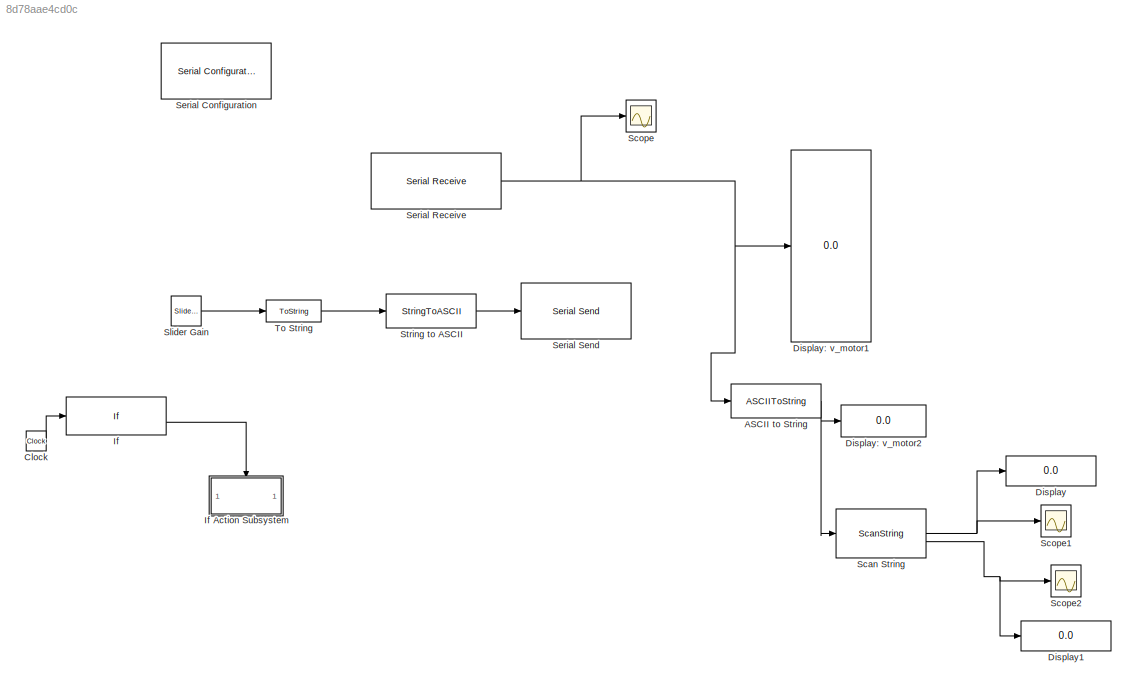
MODEL slx_8d78aae4cd0c
KIND model
CONFIG AbsTol = auto
CONFIG EnableMultiTasking = off
CONFIG FixedStep = 0.01
CONFIG MaxStep = auto
CONFIG MinStep = auto
CONFIG RelTol = 1e-3
CONFIG SampleTimeConstraint = Unconstrained
CONFIG SolverName = FixedStepAuto
CONFIG StartTime = 0.0
CONFIG StopTime = inf
BLOCK [ASCIIToString] ASCII to String
BLOCK [Clock] Clock
BLOCK [Display] Display
  Decimation = 1
BLOCK [Display] Display1
  Decimation = 1
BLOCK [Display] Display: v_motor1
  Decimation = 50
BLOCK [Display] Display: v_motor2
  Decimation = 50
BLOCK [If] If
  IfExpression = u1 < 1
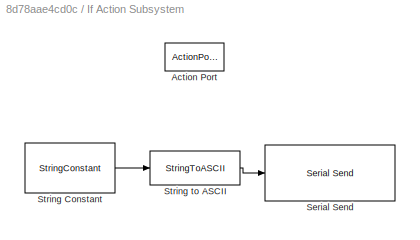
BLOCK [SubSystem] If Action Subsystem
  TreatAsAtomicUnit = on
BLOCK [ActionPort] If Action Subsystem/Action Port
  ActionPortLabel = else
BLOCK [Reference] If Action Subsystem/Serial Send  REF=instrumentseriallib/Serial Send
  Priority = 1
  SourceBlock = instrumentseriallib/Serial Send
  SourceType = system.SerialSend
BLOCK [StringConstant] If Action Subsystem/String Constant
  String = "1111,5556"
BLOCK [StringToASCII] If Action Subsystem/String to ASCII
BLOCK [ScanString] Scan String
  Format = "%g,%g"
BLOCK [Scope] Scope
  ActiveDisplayYMaximum = 58.375
  ActiveDisplayYMinimum = 4.625
  Floating = off
  GraphicalSettings = {"GraphicalSettings":{"LegacySettings":true,"Style":{"Style":{"AxesColor":"[0 0 0]","ChannelNames":[""],"ColorOrder":"[1 0.909803921568627 0.392156862745098;0.149019607843137 0.549019607843137 0.866666666666667;0.96078431372549 0.466666666666667 0.16078431372549;0.286274509803922 0.858823529411765 0.250980392156863;0.752941176470588 0.36078431372549 0.984313725490196;0.423529411764706 0.9568627450...<+460ch>
  MultipleDisplayCache = [{"MaxYLimMag":58.375,"MaxYLimReal":58.375,"MinYLimMag":4.625,"MinYLimReal":4.625,"PlotAsMagnitudePhase":false,"ShowGrid":true,"ShowLegend":false,"Title":"%<SignalLabel>","YLabel":""}]
  NumInputPorts = 1
  WasSavedAsWebScope = on
BLOCK [Scope] Scope1
  ActiveDisplayYMaximum = 1281.9889306839898
  ActiveDisplayYMinimum = -384.80010076421058
  DataLoggingVariableName = ScopeData1
  Floating = off
  GraphicalSettings = {"AxesScalingProperties":{"AlignXAxis":"Center","AlignYAxis":"Center","AutoScaleXAxisLimits":false,"AxesScaling":"Manual","AxesScalingNumUpdates":10,"ExpandOnly":true,"ScaleAxesLimitsAtStop":false,"XAxisDataRange":100,"YAxisDataRange":80},"DisplayProperties":{"ColorOrder":["auto","auto","auto","auto","auto","auto","auto","auto","auto","auto","auto","auto","auto","auto","auto","auto","auto","auto",...<+1940ch>
  MultipleDisplayCache = [{"MaxYLimMag":1249.875,"MaxYLimReal":1281.9889306839898,"MinYLimMag":0,"MinYLimReal":-384.80010076421058,"PlotAsMagnitudePhase":false,"ShowGrid":true,"ShowLegend":false,"Title":"%<SignalLabel>","YLabel":""}]
  NumInputPorts = 1
  ScopeFrameLocation = window
  WasSavedAsWebScope = on
  WindowPosition = [680.000000,404.000000,560.000000,420.000000,]
BLOCK [Scope] Scope2
  ActiveDisplayYMaximum = 180.74999999999997
  ActiveDisplayYMinimum = -1626.75
  DataLoggingVariableName = ScopeData2
  Floating = off
  GraphicalSettings = {"Style":{"BackgroundColor":[0.12941176470588237,0.12941176470588237,0.12941176470588237],"AxesColor":[0.07058823529411765,0.07058823529411765,0.07058823529411765],"LabelsColor":[0.8509803921568627,0.8509803921568627,0.8509803921568627],"PreserveColors":false,"Visible":[true],"LineStyle":["-"],"LineWidth":[1.5],"BarWidth":[0.9],"LineColor":["auto"],"LineFaceAlpha":[1],"LineEdgeAlpha":[1],"Marker":...<+1940ch>
  MultipleDisplayCache = [{"MaxYLimMag":1626.75,"MaxYLimReal":180.74999999999997,"MinYLimMag":0,"MinYLimReal":-1626.75,"PlotAsMagnitudePhase":false,"ShowGrid":true,"ShowLegend":false,"Title":"%<SignalLabel>","YLabel":""}]
  NumInputPorts = 1
  ScopeFrameLocation = window
  Visible = on
  WasSavedAsWebScope = on
  WindowPosition = [961.000000,1.000000,960.000000,1011.000000,]
BLOCK [Reference] Serial Configuration  REF=instrumentseriallib/Serial Configuration
  LibrarySourceBlock = embeddedtargetslib/Host Communication/Serial Configuration
  Priority = -200000
  SourceBlock = instrumentseriallib/Serial Configuration
  SourceType = system.SerialConfiguration
BLOCK [Reference] Serial Receive  REF=instrumentseriallib/Serial Receive
  Priority = 1
  SourceBlock = instrumentseriallib/Serial Receive
  SourceType = system.SerialReceive
BLOCK [Reference] Serial Send  REF=instrumentseriallib/Serial Send
  LibrarySourceBlock = embeddedtargetslib/Host Communication/Serial Send
  Priority = 1
  SourceBlock = instrumentseriallib/Serial Send
  SourceType = system.SerialSend
BLOCK [Reference] Slider Gain  REF=simulink/Math
Operations/Slider
Gain
  SourceBlock = simulink/Math\nOperations/Slider\nGain
  SourceType = Slider Gain
BLOCK [StringToASCII] String to ASCII
BLOCK [ToString] To String
NET ASCII to String:1 -> Display: v_motor2:1, Scan String:1
LINE Clock:1 -> If:1
LINE If Action Subsystem/String Constant:1 -> If Action Subsystem/String to ASCII:1
LINE If Action Subsystem/String to ASCII:1 -> If Action Subsystem/Serial Send:1
LINE If:2 -> If Action Subsystem:ifaction
NET Scan String:1 -> Display:1, Scope1:1
NET Scan String:2 -> Display1:1, Scope2:1
NET Serial Receive:1 -> ASCII to String:1, Display: v_motor1:1, Scope:1
LINE Slider Gain:1 -> To String:1
LINE String to ASCII:1 -> Serial Send:1
LINE To String:1 -> String to ASCII:1
note: NET lines group one-source signal fan-out (src -> all destinations, sorted); 1:1 wires keep LINE
